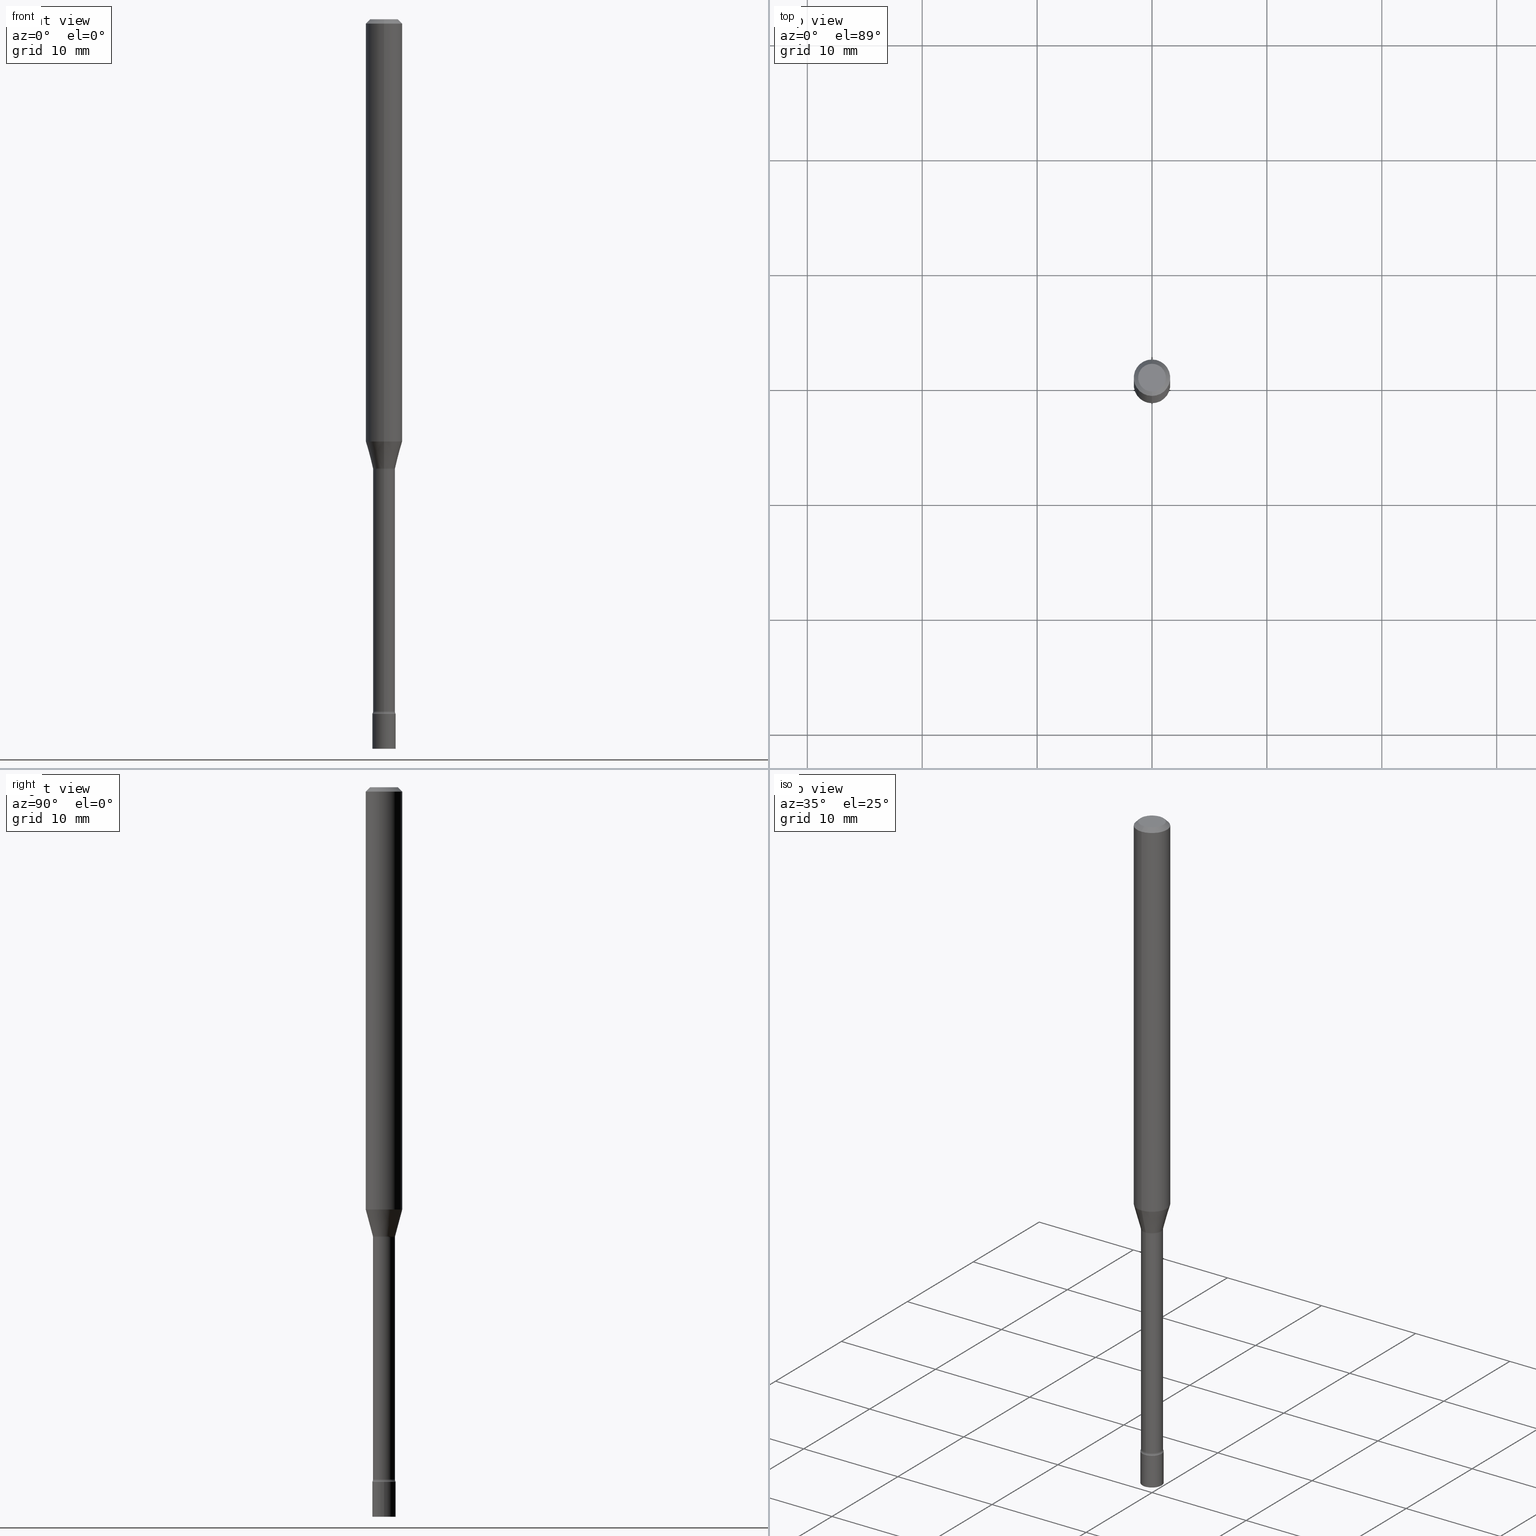
[diagram: canonical four-view strip — front | top / right | iso, engineering-drawing reading convention]
A machine part, canonical four-view strip (front | top / right | iso — engineering-drawing reading convention). The complete STEP part file that produces these views, byte-faithful:
ISO-10303-21;
HEADER;
FILE_DESCRIPTION (( 'STEP AP203' ),
    '1' );
FILE_NAME ('09721.STEP',
    '2024-03-09T01:15:24',
    ( '' ),
    ( '' ),
    'SwSTEP 2.0',
    'SolidWorks 2023',
    '' );
FILE_SCHEMA (( 'CONFIG_CONTROL_DESIGN' ));
ENDSEC;

DATA;
#1 = DIRECTION ( 'NONE',  ( -2.445461116337205302E-29, 3.491492351143062048E-15, 1.000000000000000000 ) ) ;
#2 = DIRECTION ( 'NONE',  ( -6.982962677686265922E-15, -1.000000000000000000, 3.491492351143062442E-15 ) ) ;
#3 = ORIENTED_EDGE ( 'NONE', *, *, #406, .T. ) ;
#4 = DIRECTION ( 'NONE',  ( 0.000000000000000000, 0.000000000000000000, 1.000000000000000000 ) ) ;
#5 = FACE_OUTER_BOUND ( 'NONE', #417, .T. ) ;
#6 = EDGE_CURVE ( 'NONE', #326, #100, #402, .T. ) ;
#7 = APPROVAL_ROLE ( '' ) ;
#8 = AXIS2_PLACEMENT_3D ( 'NONE', #9, #323, #93 ) ;
#9 = CARTESIAN_POINT ( 'NONE',  ( 5.820215758720625190E-29, -8.309725586446686731E-15, -2.379999999999999893 ) ) ;
#10 = AXIS2_PLACEMENT_3D ( 'NONE', #294, #213, #102 ) ;
#11 = DIRECTION ( 'NONE',  ( -6.982962677686265922E-15, -1.000000000000000000, 0.000000000000000000 ) ) ;
#12 = CARTESIAN_POINT ( 'NONE',  ( -0.04000000000000000083, -8.234997372473236299E-15, -2.379999999999999893 ) ) ;
#13 = DIRECTION ( 'NONE',  ( -2.445461116337205302E-29, 3.491492351143062048E-15, 1.000000000000000000 ) ) ;
#14 = ORIENTED_EDGE ( 'NONE', *, *, #513, .T. ) ;
#15 = CARTESIAN_POINT ( 'NONE',  ( 3.770839385115076071E-29, -5.383793176085344105E-15, -1.541974787463811003 ) ) ;
#16 = DIRECTION ( 'NONE',  ( -2.445461116337205302E-29, 3.491492351143062048E-15, 1.000000000000000000 ) ) ;
#17 = DIRECTION ( 'NONE',  ( -2.445461116337205302E-29, 3.491492351143062048E-15, 1.000000000000000000 ) ) ;
#18 = AXIS2_PLACEMENT_3D ( 'NONE', #518, #277, #179 ) ;
#19 = DIRECTION ( 'NONE',  ( -2.445461116337205302E-29, 3.491492351143062048E-15, 1.000000000000000000 ) ) ;
#20 = ORIENTED_EDGE ( 'NONE', *, *, #180, .T. ) ;
#21 = CARTESIAN_POINT ( 'NONE',  ( 0.04000000000000000083, -9.008021854215314980E-15, -2.500000000000000000 ) ) ;
#22 = EDGE_CURVE ( 'NONE', #28, #315, #311, .T. ) ;
#23 = ORIENTED_EDGE ( 'NONE', *, *, #22, .F. ) ;
#24 = PERSON ( 'UNSPECIFIED', 'UNSPECIFIED', 'UNSPECIFIED', ('UNSPECIFIED'), ('UNSPECIFIED'), ('UNSPECIFIED') ) ;
#25 = ADVANCED_FACE ( 'NONE', ( #83 ), #391, .T. ) ;
#26 = CARTESIAN_POINT ( 'NONE',  ( 3.737454790098713265E-16, 0.05259999999999181997, -2.371861204020250025 ) ) ;
#27 = DIRECTION ( 'NONE',  ( -2.438088387897960049E-29, 3.491481338843145188E-15, 1.000000000000000000 ) ) ;
#28 = VERTEX_POINT ( 'NONE', #448 ) ;
#29 = DIRECTION ( 'NONE',  ( 2.445461116337205302E-29, -3.491492351143061653E-15, -1.000000000000000000 ) ) ;
#30 = ORIENTED_EDGE ( 'NONE', *, *, #421, .F. ) ;
#31 = AXIS2_PLACEMENT_3D ( 'NONE', #44, #263, #338 ) ;
#32 = CARTESIAN_POINT ( 'NONE',  ( 3.737454790098503724E-16, 0.05259999999999460940, -1.541974787463811225 ) ) ;
#33 = VERTEX_POINT ( 'NONE', #133 ) ;
#34 = EDGE_CURVE ( 'NONE', #110, #271, #348, .T. ) ;
#35 = FACE_OUTER_BOUND ( 'NONE', #67, .T. ) ;
#36 = EDGE_CURVE ( 'NONE', #182, #71, #306, .T. ) ;
#37 = PERSON_AND_ORGANIZATION ( #24, #188 ) ;
#38 = CLOSED_SHELL ( 'NONE', ( #296, #483, #472, #153 ) ) ;
#39 = AXIS2_PLACEMENT_3D ( 'NONE', #140, #331, #458 ) ;
#40 = CARTESIAN_POINT ( 'NONE',  ( 5.820215758720625190E-29, -8.309725586446686731E-15, -2.379999999999999893 ) ) ;
#41 = FACE_OUTER_BOUND ( 'NONE', #319, .T. ) ;
#42 = EDGE_CURVE ( 'NONE', #33, #450, #128, .T. ) ;
#43 = PERSON_AND_ORGANIZATION ( #24, #188 ) ;
#44 = CARTESIAN_POINT ( 'NONE',  ( 3.770851242666705328E-29, -5.383776195396521708E-15, -1.541974787463811003 ) ) ;
#45 = CARTESIAN_POINT ( 'NONE',  ( -4.364351673553912750E-16, -0.06250000000000005551, -0.01499999999999981209 ) ) ;
#46 = DIRECTION ( 'NONE',  ( 1.000000000000000000, -7.105427357601001070E-15, 4.926315643403860971E-29 ) ) ;
#47 = DATE_AND_TIME ( #393, #461 ) ;
#48 = AXIS2_PLACEMENT_3D ( 'NONE', #455, #19, #414 ) ;
#49 = ORIENTED_EDGE ( 'NONE', *, *, #463, .T. ) ;
#50 = DIRECTION ( 'NONE',  ( 7.105427357600997914E-15, 1.000000000000000000, 0.000000000000000000 ) ) ;
#51 = EDGE_CURVE ( 'NONE', #145, #182, #187, .T. ) ;
#52 = DATE_AND_TIME ( #206, #372 ) ;
#53 = CC_DESIGN_PERSON_AND_ORGANIZATION_ASSIGNMENT ( #37, #442, ( #516 ) ) ;
#54 = ORIENTED_EDGE ( 'NONE', *, *, #51, .T. ) ;
#55 =( NAMED_UNIT ( * ) PLANE_ANGLE_UNIT ( ) SI_UNIT ( $, .RADIAN. ) );
#56 = LINE ( 'NONE', #131, #517 ) ;
#57 = PERSON_AND_ORGANIZATION ( #24, #188 ) ;
#58 = DIRECTION ( 'NONE',  ( -2.445461116337205302E-29, 3.491492351143061653E-15, 1.000000000000000000 ) ) ;
#59 = APPROVAL_STATUS ( 'not_yet_approved' ) ;
#60 = TOROIDAL_SURFACE ( 'NONE', #104, 0.05260000000000000092, 0.01500000000000002373 ) ;
#61 = APPROVAL_PERSON_ORGANIZATION ( #200, #64, #7 ) ;
#62 = COORDINATED_UNIVERSAL_TIME_OFFSET ( 5, 0, .BEHIND. ) ;
#63 = CARTESIAN_POINT ( 'NONE',  ( 3.761345406450589548E-29, -5.370238205340760891E-15, -1.538092501787273081 ) ) ;
#64 = APPROVAL ( #59, 'UNSPECIFIED' ) ;
#65 = DIRECTION ( 'NONE',  ( -4.851104656540964275E-15, -0.7071067811865500152, -0.7071067811865450192 ) ) ;
#66 = FACE_OUTER_BOUND ( 'NONE', #438, .T. ) ;
#67 = EDGE_LOOP ( 'NONE', ( #79, #120, #376, #236 ) ) ;
#68 = AXIS2_PLACEMENT_3D ( 'NONE', #146, #494, #410 ) ;
#69 = AXIS2_PLACEMENT_3D ( 'NONE', #356, #445, #117 ) ;
#70 = EDGE_LOOP ( 'NONE', ( #298, #155 ) ) ;
#71 = VERTEX_POINT ( 'NONE', #464 ) ;
#72 = DIRECTION ( 'NONE',  ( -2.445468806185136597E-29, 3.491481338843145583E-15, 1.000000000000000000 ) ) ;
#73 = FACE_OUTER_BOUND ( 'NONE', #468, .T. ) ;
#74 = ORIENTED_EDGE ( 'NONE', *, *, #36, .T. ) ;
#75 =( CONVERSION_BASED_UNIT ( 'INCH', #114 ) LENGTH_UNIT ( ) NAMED_UNIT ( #347 ) );
#76 = AXIS2_PLACEMENT_3D ( 'NONE', #178, #111, #424 ) ;
#77 = DIRECTION ( 'NONE',  ( -6.982962677686265922E-15, -1.000000000000000000, 3.483106191921935554E-15 ) ) ;
#78 = DIRECTION ( 'NONE',  ( 6.982962677686265922E-15, 1.000000000000000000, -3.483106191921935554E-15 ) ) ;
#79 = ORIENTED_EDGE ( 'NONE', *, *, #176, .T. ) ;
#80 = AXIS2_PLACEMENT_3D ( 'NONE', #247, #405, #119 ) ;
#81 = CIRCLE ( 'NONE', #10, 0.04749999999999999362 ) ;
#82 = ADVANCED_FACE ( 'NONE', ( #73 ), #175, .F. ) ;
#83 = FACE_OUTER_BOUND ( 'NONE', #379, .T. ) ;
#84 = APPROVAL_STATUS ( 'not_yet_approved' ) ;
#85 = ORIENTED_EDGE ( 'NONE', *, *, #267, .T. ) ;
#86 = EDGE_CURVE ( 'NONE', #450, #339, #282, .T. ) ;
#87 = DATE_AND_TIME ( #123, #498 ) ;
#88 = VECTOR ( 'NONE', #258, 39.37007874015748143 ) ;
#89 = CIRCLE ( 'NONE', #343, 0.03759999999999999454 ) ;
#90 = CARTESIAN_POINT ( 'NONE',  ( 2.671640686457979762E-16, 0.03760000000000005005, -1.312801124029792938E-16 ) ) ;
#91 = PERSON_AND_ORGANIZATION_ROLE ( 'design_supplier' ) ;
#92 = CARTESIAN_POINT ( 'NONE',  ( 5.800294347780268046E-29, -8.281335251809675167E-15, -2.371861204020250025 ) ) ;
#93 = DIRECTION ( 'NONE',  ( 1.000000000000000000, -6.982962677686259611E-15, 0.000000000000000000 ) ) ;
#94 = ADVANCED_FACE ( 'NONE', ( #5 ), #491, .F. ) ;
#95 = AXIS2_PLACEMENT_3D ( 'NONE', #324, #184, #77 ) ;
#96 = CIRCLE ( 'NONE', #69, 0.06250000000000000000 ) ;
#97 = EDGE_CURVE ( 'NONE', #408, #271, #308, .T. ) ;
#98 = DIRECTION ( 'NONE',  ( -1.000000000000000000, 6.982962677686265922E-15, -4.883557194083112340E-29 ) ) ;
#99 = CYLINDRICAL_SURFACE ( 'NONE', #223, 0.04000000000000000083 ) ;
#100 = VERTEX_POINT ( 'NONE', #45 ) ;
#101 = DIRECTION ( 'NONE',  ( -6.982962677686266711E-15, -1.000000000000000000, 0.000000000000000000 ) ) ;
#102 = DIRECTION ( 'NONE',  ( -6.982962677686266711E-15, -1.000000000000000000, 3.491492351143062442E-15 ) ) ;
#103 = DIRECTION ( 'NONE',  ( -6.982962677686265922E-15, -1.000000000000000000, 4.370956789862821150E-15 ) ) ;
#104 = AXIS2_PLACEMENT_3D ( 'NONE', #397, #350, #2 ) ;
#105 = DIRECTION ( 'NONE',  ( -6.982962677686266711E-15, -1.000000000000000000, 0.000000000000000000 ) ) ;
#106 = ORIENTED_EDGE ( 'NONE', *, *, #427, .F. ) ;
#107 = DIRECTION ( 'NONE',  ( -2.445468806185136597E-29, 3.491481338843145583E-15, 1.000000000000000000 ) ) ;
#108 = PRODUCT_DEFINITION_SHAPE ( 'NONE', 'NONE',  #516 ) ;
#109 = CARTESIAN_POINT ( 'NONE',  ( -4.364351673553565651E-16, -0.06250000000000509315, -1.447071934891535072 ) ) ;
#110 = VERTEX_POINT ( 'NONE', #197 ) ;
#111 = DIRECTION ( 'NONE',  ( -2.445461116337205302E-29, 3.491492351143062048E-15, 1.000000000000000000 ) ) ;
#112 = ORIENTED_EDGE ( 'NONE', *, *, #176, .F. ) ;
#113 = PLANE ( 'NONE',  #129 ) ;
#114 = LENGTH_MEASURE_WITH_UNIT ( LENGTH_MEASURE( 0.02539999999999999897 ), #337 );
#115 = AXIS2_PLACEMENT_3D ( 'NONE', #283, #487, #446 ) ;
#116 = PLANE ( 'NONE',  #371 ) ;
#117 = DIRECTION ( 'NONE',  ( -6.982962677686265922E-15, -1.000000000000000000, 3.483106191921935554E-15 ) ) ;
#118 = CIRCLE ( 'NONE', #407, 0.03811111260566397985 ) ;
#119 = DIRECTION ( 'NONE',  ( -6.982962677686265922E-15, -1.000000000000000000, 6.829619984160658243E-15 ) ) ;
#120 = ORIENTED_EDGE ( 'NONE', *, *, #383, .T. ) ;
#121 = EDGE_CURVE ( 'NONE', #271, #110, #328, .T. ) ;
#122 = DATE_TIME_ROLE ( 'creation_date' ) ;
#123 = CALENDAR_DATE ( 2024, 8, 3 ) ;
#124 = CARTESIAN_POINT ( 'NONE',  ( 5.800312587032241644E-29, -8.281309132162736146E-15, -2.371861204020250025 ) ) ;
#125 = CARTESIAN_POINT ( 'NONE',  ( 3.840629472727447874E-16, 0.04749999999999999362, -1.947592745229183872E-16 ) ) ;
#126 = FACE_OUTER_BOUND ( 'NONE', #373, .T. ) ;
#127 = CLOSED_SHELL ( 'NONE', ( #317, #164, #82, #221, #25, #453, #507, #318, #211, #141, #370, #94, #280, #312 ) ) ;
#128 = CIRCLE ( 'NONE', #415, 0.03811111260566397985 ) ;
#129 = AXIS2_PLACEMENT_3D ( 'NONE', #269, #29, #173 ) ;
#130 = AXIS2_PLACEMENT_3D ( 'NONE', #148, #420, #367 ) ;
#131 = CARTESIAN_POINT ( 'NONE',  ( -2.625593966810039482E-16, -0.03760000000000005005, 1.312801124029792938E-16 ) ) ;
#132 = FACE_OUTER_BOUND ( 'NONE', #385, .T. ) ;
#133 = CARTESIAN_POINT ( 'NONE',  ( -2.661284769304125735E-16, -0.03811111260566935055, -1.538092501787273081 ) ) ;
#134 = EDGE_CURVE ( 'NONE', #375, #315, #304, .T. ) ;
#135 = COORDINATED_UNIVERSAL_TIME_OFFSET ( 5, 0, .BEHIND. ) ;
#136 = CC_DESIGN_DATE_AND_TIME_ASSIGNMENT ( #87, #490, ( #492 ) ) ;
#137 = ORIENTED_EDGE ( 'NONE', *, *, #226, .T. ) ;
#138 = VECTOR ( 'NONE', #235, 39.37007874015748143 ) ;
#139 = PRODUCT_DEFINITION_FORMATION_WITH_SPECIFIED_SOURCE ( 'ANY', '', #170, .NOT_KNOWN. ) ;
#140 = CARTESIAN_POINT ( 'NONE',  ( 5.820197456882549084E-29, -8.309751795720488217E-15, -2.379999999999999893 ) ) ;
#141 = ADVANCED_FACE ( 'NONE', ( #186 ), #113, .F. ) ;
#142 = PERSON_AND_ORGANIZATION ( #24, #188 ) ;
#143 = CC_DESIGN_PERSON_AND_ORGANIZATION_ASSIGNMENT ( #142, #276, ( #170 ) ) ;
#144 = CARTESIAN_POINT ( 'NONE',  ( 3.770839385115076071E-29, -5.383793176085344105E-15, -1.541974787463811003 ) ) ;
#145 = VERTEX_POINT ( 'NONE', #501 ) ;
#146 = CARTESIAN_POINT ( 'NONE',  ( 6.113672015462842613E-29, -8.728703347107864943E-15, -2.500000000000000000 ) ) ;
#147 = CC_DESIGN_PERSON_AND_ORGANIZATION_ASSIGNMENT ( #354, #91, ( #139 ) ) ;
#148 = CARTESIAN_POINT ( 'NONE',  ( 3.761345406450589548E-29, -5.370238205340760891E-15, -1.538092501787273081 ) ) ;
#149 = DIRECTION ( 'NONE',  ( 2.438088387897960049E-29, -3.491481338843145188E-15, -1.000000000000000000 ) ) ;
#150 = VECTOR ( 'NONE', #58, 39.37007874015748143 ) ;
#151 = APPROVAL_PERSON_ORGANIZATION ( #401, #325, #441 ) ;
#152 = CARTESIAN_POINT ( 'NONE',  ( 3.668191674505815275E-31, -5.237238526714604140E-17, -0.01500000000000003067 ) ) ;
#153 = ADVANCED_FACE ( 'NONE', ( #183 ), #116, .T. ) ;
#154 = DATE_AND_TIME ( #229, #207 ) ;
#155 = ORIENTED_EDGE ( 'NONE', *, *, #361, .F. ) ;
#156 = CIRCLE ( 'NONE', #449, 0.04749999999999999362 ) ;
#157 = DIRECTION ( 'NONE',  ( -2.445461116337205302E-29, 3.491492351143062048E-15, 1.000000000000000000 ) ) ;
#158 = APPROVAL_DATE_TIME ( #47, #64 ) ;
#159 = AXIS2_PLACEMENT_3D ( 'NONE', #419, #72, #502 ) ;
#160 = DIRECTION ( 'NONE',  ( -2.445461116337205302E-29, 3.491492351143062048E-15, 1.000000000000000000 ) ) ;
#161 = EDGE_CURVE ( 'NONE', #450, #33, #118, .T. ) ;
#162 = DIRECTION ( 'NONE',  ( -2.445461116337205302E-29, 3.491492351143061653E-15, 1.000000000000000000 ) ) ;
#163 = APPROVAL_DATE_TIME ( #52, #325 ) ;
#164 = ADVANCED_FACE ( 'NONE', ( #35 ), #377, .T. ) ;
#165 = VECTOR ( 'NONE', #489, 39.37007874015748143 ) ;
#166 = LINE ( 'NONE', #330, #314 ) ;
#167 = DIRECTION ( 'NONE',  ( -6.982962677686265922E-15, -1.000000000000000000, 0.000000000000000000 ) ) ;
#168 = ORIENTED_EDGE ( 'NONE', *, *, #362, .F. ) ;
#169 = LINE ( 'NONE', #293, #357 ) ;
#170 = PRODUCT ( '09721', '09721', '', ( #239 ) ) ;
#171 = DIRECTION ( 'NONE',  ( -1.000000000000000000, 6.982962677686265922E-15, -4.883557194083112340E-29 ) ) ;
#172 = EDGE_LOOP ( 'NONE', ( #437, #493, #352, #480 ) ) ;
#173 = DIRECTION ( 'NONE',  ( 6.982962677686265922E-15, 1.000000000000000000, -3.491492351143061653E-15 ) ) ;
#174 = CARTESIAN_POINT ( 'NONE',  ( 4.440892098500982135E-16, 0.06249999999999995143, -0.01500000000000024751 ) ) ;
#175 = TOROIDAL_SURFACE ( 'NONE', #76, 0.05260000000000009807, 0.01500000000000000291 ) ;
#176 = EDGE_CURVE ( 'NONE', #264, #145, #394, .T. ) ;
#177 = CIRCLE ( 'NONE', #233, 0.06250000000000000000 ) ;
#178 = CARTESIAN_POINT ( 'NONE',  ( 5.800312587032241644E-29, -8.281309132162736146E-15, -2.371861204020250025 ) ) ;
#179 = DIRECTION ( 'NONE',  ( -6.982962677686265922E-15, -1.000000000000000000, 3.491492351143062048E-15 ) ) ;
#180 = EDGE_CURVE ( 'NONE', #100, #315, #470, .T. ) ;
#181 = APPLICATION_PROTOCOL_DEFINITION ( 'international standard', 'config_control_design', 1994, #439 ) ;
#182 = VERTEX_POINT ( 'NONE', #305 ) ;
#183 = FACE_OUTER_BOUND ( 'NONE', #70, .T. ) ;
#184 = DIRECTION ( 'NONE',  ( -2.445461116337205302E-29, 3.491492351143062048E-15, 1.000000000000000000 ) ) ;
#185 = CARTESIAN_POINT ( 'NONE',  ( 5.820215758720625190E-29, -8.309725586446686731E-15, -2.379999999999999893 ) ) ;
#186 = FACE_OUTER_BOUND ( 'NONE', #505, .T. ) ;
#187 = CIRCLE ( 'NONE', #287, 0.01500000000000000291 ) ;
#188 = ORGANIZATION ( 'UNSPECIFIED', 'UNSPECIFIED', '' ) ;
#189 = DIRECTION ( 'NONE',  ( 6.982962677686265922E-15, 1.000000000000000000, -3.483106191921935554E-15 ) ) ;
#190 = DIRECTION ( 'NONE',  ( 1.000000000000000000, -6.982962677686265922E-15, 4.876176775795935793E-29 ) ) ;
#191 = PLANE ( 'NONE',  #388 ) ;
#192 = CYLINDRICAL_SURFACE ( 'NONE', #232, 0.06250000000000000000 ) ;
#193 = DIRECTION ( 'NONE',  ( -1.000000000000000000, 6.982962677686265922E-15, -4.876176775795935793E-29 ) ) ;
#194 = ORIENTED_EDGE ( 'NONE', *, *, #6, .F. ) ;
#195 = DIRECTION ( 'NONE',  ( -2.445461116337205302E-29, 3.491492351143061653E-15, 1.000000000000000000 ) ) ;
#196 = AXIS2_PLACEMENT_3D ( 'NONE', #152, #473, #78 ) ;
#197 = CARTESIAN_POINT ( 'NONE',  ( 0.04000000000000000083, -8.589044093554136769E-15, -2.379999999999999893 ) ) ;
#198 = ORIENTED_EDGE ( 'NONE', *, *, #443, .T. ) ;
#199 = CARTESIAN_POINT ( 'NONE',  ( 0.000000000000000000, 0.000000000000000000, 0.000000000000000000 ) ) ;
#200 = PERSON_AND_ORGANIZATION ( #24, #188 ) ;
#201 = DIRECTION ( 'NONE',  ( -6.982962677686265922E-15, -1.000000000000000000, 3.491492351143061653E-15 ) ) ;
#202 = COORDINATED_UNIVERSAL_TIME_OFFSET ( 5, 0, .BEHIND. ) ;
#203 = APPROVAL ( #519, 'UNSPECIFIED' ) ;
#204 = PLANE ( 'NONE',  #242 ) ;
#205 = CONICAL_SURFACE ( 'NONE', #342, 0.06250000000000000000, 0.7853981633974483900 ) ;
#206 = CALENDAR_DATE ( 2024, 8, 3 ) ;
#207 = LOCAL_TIME ( 20, 15, 24.00000000000000000, #310 ) ;
#208 = DIRECTION ( 'NONE',  ( -2.445461116337205302E-29, 3.491492351143062048E-15, 1.000000000000000000 ) ) ;
#209 = CARTESIAN_POINT ( 'NONE',  ( -2.625593966809658857E-16, -0.03760000000000537912, -1.541974787463811003 ) ) ;
#210 = ORIENTED_EDGE ( 'NONE', *, *, #6, .T. ) ;
#211 = ADVANCED_FACE ( 'NONE', ( #386 ), #425, .T. ) ;
#212 = DIRECTION ( 'NONE',  ( -1.807323732225330534E-15, -0.2588190451025182415, 0.9659258262890689783 ) ) ;
#213 = DIRECTION ( 'NONE',  ( -2.445461116337205302E-29, 3.491492351143062048E-15, 1.000000000000000000 ) ) ;
#214 = DIRECTION ( 'NONE',  ( -2.445468806185136597E-29, 3.491481338843145583E-15, 1.000000000000000000 ) ) ;
#215 = AXIS2_PLACEMENT_3D ( 'NONE', #92, #160, #11 ) ;
#216 = CC_DESIGN_APPROVAL ( #203, ( #516 ) ) ;
#217 = DESIGN_CONTEXT ( 'detailed design', #345, 'design' ) ;
#218 = CARTESIAN_POINT ( 'NONE',  ( -3.773273898774340269E-16, -0.04749999999999999362, 1.369324988356724708E-16 ) ) ;
#219 = ORIENTED_EDGE ( 'NONE', *, *, #86, .F. ) ;
#220 = ADVANCED_BREP_SHAPE_REPRESENTATION ( '09721', ( #227, #398, #416 ), #256 ) ;
#221 = ADVANCED_FACE ( 'NONE', ( #230 ), #205, .T. ) ;
#222 = VECTOR ( 'NONE', #358, 39.37007874015748143 ) ;
#223 = AXIS2_PLACEMENT_3D ( 'NONE', #412, #214, #506 ) ;
#224 = ORIENTED_EDGE ( 'NONE', *, *, #421, .T. ) ;
#225 = ORIENTED_EDGE ( 'NONE', *, *, #161, .T. ) ;
#226 = EDGE_CURVE ( 'NONE', #422, #408, #510, .T. ) ;
#227 = MANIFOLD_SOLID_BREP ( 'Body-Move/Copy2[1]', #38 ) ;
#228 = EDGE_CURVE ( 'NONE', #422, #110, #302, .T. ) ;
#229 = CALENDAR_DATE ( 2024, 8, 3 ) ;
#230 = FACE_OUTER_BOUND ( 'NONE', #301, .T. ) ;
#231 = DIRECTION ( 'NONE',  ( -6.982962677686265922E-15, -1.000000000000000000, 3.491492351143062048E-15 ) ) ;
#232 = AXIS2_PLACEMENT_3D ( 'NONE', #515, #157, #316 ) ;
#233 = AXIS2_PLACEMENT_3D ( 'NONE', #363, #13, #103 ) ;
#234 = DIRECTION ( 'NONE',  ( -2.445461116337205302E-29, 3.491492351143061653E-15, 1.000000000000000000 ) ) ;
#235 = DIRECTION ( 'NONE',  ( -2.445468806185136877E-29, 3.491481338843145188E-15, 1.000000000000000000 ) ) ;
#236 = ORIENTED_EDGE ( 'NONE', *, *, #392, .F. ) ;
#237 = ORIENTED_EDGE ( 'NONE', *, *, #409, .T. ) ;
#238 =( NAMED_UNIT ( * ) SI_UNIT ( $, .STERADIAN. ) SOLID_ANGLE_UNIT ( ) );
#239 = MECHANICAL_CONTEXT ( 'NONE', #439, 'mechanical' ) ;
#240 = PERSON_AND_ORGANIZATION ( #24, #188 ) ;
#241 = ORIENTED_EDGE ( 'NONE', *, *, #228, .F. ) ;
#242 = AXIS2_PLACEMENT_3D ( 'NONE', #481, #195, #201 ) ;
#243 = CARTESIAN_POINT ( 'NONE',  ( 2.707957421369348639E-16, 0.03811111260565861608, -1.538092501787273081 ) ) ;
#244 = EDGE_CURVE ( 'NONE', #71, #182, #496, .T. ) ;
#245 = DIRECTION ( 'NONE',  ( -6.982962677686265922E-15, -1.000000000000000000, 3.491492351143061653E-15 ) ) ;
#246 = CARTESIAN_POINT ( 'NONE',  ( 3.761345406450589548E-29, -5.370238205340760891E-15, -1.538092501787273081 ) ) ;
#247 = CARTESIAN_POINT ( 'NONE',  ( 5.820197456882549084E-29, -8.309751795720488217E-15, -2.379999999999999893 ) ) ;
#248 = ORIENTED_EDGE ( 'NONE', *, *, #180, .F. ) ;
#249 = AXIS2_PLACEMENT_3D ( 'NONE', #32, #46, #50 ) ;
#250 = CC_DESIGN_DATE_AND_TIME_ASSIGNMENT ( #384, #122, ( #516 ) ) ;
#251 = DIRECTION ( 'NONE',  ( -6.982962677686265922E-15, -1.000000000000000000, 0.000000000000000000 ) ) ;
#252 = ORIENTED_EDGE ( 'NONE', *, *, #22, .T. ) ;
#253 = DIRECTION ( 'NONE',  ( -2.445461116337205302E-29, 3.491492351143062048E-15, 1.000000000000000000 ) ) ;
#254 = CIRCLE ( 'NONE', #115, 0.06250000000000000000 ) ;
#255 = ORIENTED_EDGE ( 'NONE', *, *, #161, .F. ) ;
#256 =( GEOMETRIC_REPRESENTATION_CONTEXT ( 3 ) GLOBAL_UNCERTAINTY_ASSIGNED_CONTEXT ( ( #418 ) ) GLOBAL_UNIT_ASSIGNED_CONTEXT ( ( #75, #55, #238 ) ) REPRESENTATION_CONTEXT ( 'NONE', 'WORKASPACE' ) );
#257 = ORIENTED_EDGE ( 'NONE', *, *, #97, .T. ) ;
#258 = DIRECTION ( 'NONE',  ( 4.937700262164548042E-15, 0.7071067811865451302, -0.7071067811865499042 ) ) ;
#259 = EDGE_CURVE ( 'NONE', #355, #100, #169, .T. ) ;
#260 = CARTESIAN_POINT ( 'NONE',  ( 2.671640686458559082E-16, 0.03759999999999461689, -1.541974787463811003 ) ) ;
#261 = ORIENTED_EDGE ( 'NONE', *, *, #259, .F. ) ;
#262 = ORIENTED_EDGE ( 'NONE', *, *, #349, .F. ) ;
#263 = DIRECTION ( 'NONE',  ( -2.445461116337205302E-29, 3.491492351143062048E-15, 1.000000000000000000 ) ) ;
#264 = VERTEX_POINT ( 'NONE', #369 ) ;
#265 = APPROVAL_DATE_TIME ( #154, #203 ) ;
#266 = ORIENTED_EDGE ( 'NONE', *, *, #267, .F. ) ;
#267 = EDGE_CURVE ( 'NONE', #33, #326, #166, .T. ) ;
#268 = CIRCLE ( 'NONE', #48, 0.03760000000000009862 ) ;
#269 = CARTESIAN_POINT ( 'NONE',  ( 3.316907271900976096E-16, 0.04749999999999999362, -1.803025806011069266E-16 ) ) ;
#270 = AXIS2_PLACEMENT_3D ( 'NONE', #124, #434, #231 ) ;
#271 = VERTEX_POINT ( 'NONE', #12 ) ;
#272 = CIRCLE ( 'NONE', #329, 0.03759999999999999454 ) ;
#273 = EDGE_CURVE ( 'NONE', #450, #28, #322, .T. ) ;
#274 = EDGE_CURVE ( 'NONE', #28, #326, #254, .T. ) ;
#275 = ORIENTED_EDGE ( 'NONE', *, *, #134, .T. ) ;
#276 = PERSON_AND_ORGANIZATION_ROLE ( 'design_owner' ) ;
#277 = DIRECTION ( 'NONE',  ( -2.445461116337205302E-29, 3.491492351143062048E-15, 1.000000000000000000 ) ) ;
#278 = ORIENTED_EDGE ( 'NONE', *, *, #273, .F. ) ;
#279 = SHAPE_DEFINITION_REPRESENTATION ( #108, #220 ) ;
#280 = ADVANCED_FACE ( 'NONE', ( #132 ), #444, .T. ) ;
#281 = EDGE_LOOP ( 'NONE', ( #495, #336 ) ) ;
#282 = CIRCLE ( 'NONE', #249, 0.01500000000000002720 ) ;
#283 = CARTESIAN_POINT ( 'NONE',  ( 3.538758149320093430E-29, -5.052440592227586614E-15, -1.447071934891535294 ) ) ;
#284 = COORDINATED_UNIVERSAL_TIME_OFFSET ( 5, 0, .BEHIND. ) ;
#285 = CARTESIAN_POINT ( 'NONE',  ( 0.000000000000000000, 0.000000000000000000, 0.000000000000000000 ) ) ;
#286 = DIRECTION ( 'NONE',  ( -6.982962677686263555E-15, -1.000000000000000000, 0.000000000000000000 ) ) ;
#287 = AXIS2_PLACEMENT_3D ( 'NONE', #26, #300, #511 ) ;
#288 = APPROVAL_PERSON_ORGANIZATION ( #43, #203, #469 ) ;
#289 = ORIENTED_EDGE ( 'NONE', *, *, #259, .T. ) ;
#290 = DIRECTION ( 'NONE',  ( -6.982962677686265922E-15, -1.000000000000000000, 3.491492351143061653E-15 ) ) ;
#291 = CARTESIAN_POINT ( 'NONE',  ( 4.364351673553919652E-16, 0.06249999999999995143, -0.01500000000000024751 ) ) ;
#292 = PRODUCT_RELATED_PRODUCT_CATEGORY ( 'detail', '', ( #170 ) ) ;
#293 = CARTESIAN_POINT ( 'NONE',  ( -4.287811248607203282E-16, -0.06250000000000005551, -0.01499999999999981209 ) ) ;
#294 = CARTESIAN_POINT ( 'NONE',  ( 7.070656571315682104E-46, -1.009508725016424061E-31, -2.891338784362297672E-17 ) ) ;
#295 = ORIENTED_EDGE ( 'NONE', *, *, #42, .T. ) ;
#296 = ADVANCED_FACE ( 'NONE', ( #126 ), #360, .T. ) ;
#297 = AXIS2_PLACEMENT_3D ( 'NONE', #440, #400, #403 ) ;
#298 = ORIENTED_EDGE ( 'NONE', *, *, #226, .F. ) ;
#299 = AXIS2_PLACEMENT_3D ( 'NONE', #456, #171, #286 ) ;
#300 = DIRECTION ( 'NONE',  ( 1.000000000000000000, -7.105427357601001070E-15, 4.926315643403860971E-29 ) ) ;
#301 = EDGE_LOOP ( 'NONE', ( #30, #289, #20, #475 ) ) ;
#302 = LINE ( 'NONE', #423, #459 ) ;
#303 = CARTESIAN_POINT ( 'NONE',  ( 3.761345406450589548E-29, -5.370238205340760891E-15, -1.538092501787273081 ) ) ;
#304 = LINE ( 'NONE', #291, #88 ) ;
#305 = CARTESIAN_POINT ( 'NONE',  ( 2.842170943040982095E-16, 0.03999999999999170192, -2.380000000000000338 ) ) ;
#306 = CIRCLE ( 'NONE', #80, 0.04000000000000000083 ) ;
#307 = ORIENTED_EDGE ( 'NONE', *, *, #383, .F. ) ;
#308 = LINE ( 'NONE', #346, #138 ) ;
#309 = FACE_OUTER_BOUND ( 'NONE', #281, .T. ) ;
#310 = COORDINATED_UNIVERSAL_TIME_OFFSET ( 5, 0, .BEHIND. ) ;
#311 = LINE ( 'NONE', #474, #320 ) ;
#312 = ADVANCED_FACE ( 'NONE', ( #41 ), #60, .F. ) ;
#313 = FACE_OUTER_BOUND ( 'NONE', #395, .T. ) ;
#314 = VECTOR ( 'NONE', #212, 39.37007874015748143 ) ;
#315 = VERTEX_POINT ( 'NONE', #174 ) ;
#316 = DIRECTION ( 'NONE',  ( -6.982962677686265922E-15, -1.000000000000000000, 3.491492351143062048E-15 ) ) ;
#317 = ADVANCED_FACE ( 'NONE', ( #313 ), #387, .F. ) ;
#318 = ADVANCED_FACE ( 'NONE', ( #390 ), #192, .T. ) ;
#319 = EDGE_LOOP ( 'NONE', ( #219, #478, #237, #14 ) ) ;
#320 = VECTOR ( 'NONE', #234, 39.37007874015748143 ) ;
#321 = LINE ( 'NONE', #90, #222 ) ;
#322 = LINE ( 'NONE', #243, #165 ) ;
#323 = DIRECTION ( 'NONE',  ( -2.445468806185136597E-29, 3.491481338843145583E-15, 1.000000000000000000 ) ) ;
#324 = CARTESIAN_POINT ( 'NONE',  ( 3.668191674505815275E-31, -5.237238526714604140E-17, -0.01500000000000003067 ) ) ;
#325 = APPROVAL ( #84, 'UNSPECIFIED' ) ;
#326 = VERTEX_POINT ( 'NONE', #109 ) ;
#327 = FACE_OUTER_BOUND ( 'NONE', #172, .T. ) ;
#328 = CIRCLE ( 'NONE', #482, 0.04000000000000000083 ) ;
#329 = AXIS2_PLACEMENT_3D ( 'NONE', #15, #454, #167 ) ;
#330 = CARTESIAN_POINT ( 'NONE',  ( -2.661284769304125735E-16, -0.03811111260566935055, -1.538092501787273081 ) ) ;
#331 = DIRECTION ( 'NONE',  ( -2.445461116337205302E-29, 3.491492351143062048E-15, 1.000000000000000000 ) ) ;
#332 = ORIENTED_EDGE ( 'NONE', *, *, #349, .T. ) ;
#333 = CIRCLE ( 'NONE', #159, 0.04000000000000000083 ) ;
#334 = EDGE_LOOP ( 'NONE', ( #435, #462 ) ) ;
#335 = CC_DESIGN_APPROVAL ( #64, ( #492 ) ) ;
#336 = ORIENTED_EDGE ( 'NONE', *, *, #121, .T. ) ;
#337 =( LENGTH_UNIT ( ) NAMED_UNIT ( * ) SI_UNIT ( $, .METRE. ) );
#338 = DIRECTION ( 'NONE',  ( -6.982962677686265922E-15, -1.000000000000000000, 3.491492351143062442E-15 ) ) ;
#339 = VERTEX_POINT ( 'NONE', #260 ) ;
#340 = ORIENTED_EDGE ( 'NONE', *, *, #392, .T. ) ;
#341 = CARTESIAN_POINT ( 'NONE',  ( -0.04000000000000000083, -8.234997372473236299E-15, -2.500000000000000000 ) ) ;
#342 = AXIS2_PLACEMENT_3D ( 'NONE', #512, #389, #189 ) ;
#343 = AXIS2_PLACEMENT_3D ( 'NONE', #144, #16, #251 ) ;
#344 = ORIENTED_EDGE ( 'NONE', *, *, #463, .F. ) ;
#345 = APPLICATION_CONTEXT ( 'configuration controlled 3d designs of mechanical parts and assemblies' ) ;
#346 = CARTESIAN_POINT ( 'NONE',  ( -0.04000000000000000083, 2.842170943040400803E-16, -1.967574036101962509E-30 ) ) ;
#347 = DIMENSIONAL_EXPONENTS ( 1.000000000000000000, 0.000000000000000000, 0.000000000000000000, 0.000000000000000000, 0.000000000000000000, 0.000000000000000000, 0.000000000000000000 ) ;
#348 = CIRCLE ( 'NONE', #8, 0.04000000000000000083 ) ;
#349 = EDGE_CURVE ( 'NONE', #145, #264, #268, .T. ) ;
#350 = DIRECTION ( 'NONE',  ( -2.445461116337205302E-29, 3.491492351143062048E-15, 1.000000000000000000 ) ) ;
#351 = PERSON_AND_ORGANIZATION_ROLE ( 'creator' ) ;
#352 = ORIENTED_EDGE ( 'NONE', *, *, #228, .T. ) ;
#353 = DIRECTION ( 'NONE',  ( -6.982962677686266711E-15, -1.000000000000000000, 3.491492351143062442E-15 ) ) ;
#354 = PERSON_AND_ORGANIZATION ( #24, #188 ) ;
#355 = VERTEX_POINT ( 'NONE', #218 ) ;
#356 = CARTESIAN_POINT ( 'NONE',  ( 3.668191674505815275E-31, -5.237238526714604140E-17, -0.01500000000000003067 ) ) ;
#357 = VECTOR ( 'NONE', #65, 39.37007874015748143 ) ;
#358 = DIRECTION ( 'NONE',  ( -2.445461116337205302E-29, 3.491492351143061653E-15, 1.000000000000000000 ) ) ;
#359 = CIRCLE ( 'NONE', #380, 0.01500000000000000291 ) ;
#360 = CYLINDRICAL_SURFACE ( 'NONE', #297, 0.04000000000000000083 ) ;
#361 = EDGE_CURVE ( 'NONE', #408, #422, #333, .T. ) ;
#362 = EDGE_CURVE ( 'NONE', #375, #355, #156, .T. ) ;
#363 = CARTESIAN_POINT ( 'NONE',  ( 3.538758149320093430E-29, -5.052440592227586614E-15, -1.447071934891535294 ) ) ;
#364 = ORIENTED_EDGE ( 'NONE', *, *, #273, .T. ) ;
#365 = FACE_OUTER_BOUND ( 'NONE', #514, .T. ) ;
#366 = EDGE_LOOP ( 'NONE', ( #23, #382, #210, #457 ) ) ;
#367 = DIRECTION ( 'NONE',  ( -6.982962677686266711E-15, -1.000000000000000000, 0.000000000000000000 ) ) ;
#368 = ORIENTED_EDGE ( 'NONE', *, *, #51, .F. ) ;
#369 = CARTESIAN_POINT ( 'NONE',  ( -2.625593966809462627E-16, -0.03760000000000837672, -2.371861204020250025 ) ) ;
#370 = ADVANCED_FACE ( 'NONE', ( #399 ), #204, .F. ) ;
#371 = AXIS2_PLACEMENT_3D ( 'NONE', #466, #149, #193 ) ;
#372 = LOCAL_TIME ( 20, 15, 24.00000000000000000, #62 ) ;
#373 = EDGE_LOOP ( 'NONE', ( #137, #257, #465, #241 ) ) ;
#374 = CC_DESIGN_PERSON_AND_ORGANIZATION_ASSIGNMENT ( #57, #351, ( #139 ) ) ;
#375 = VERTEX_POINT ( 'NONE', #125 ) ;
#376 = ORIENTED_EDGE ( 'NONE', *, *, #513, .F. ) ;
#377 = CYLINDRICAL_SURFACE ( 'NONE', #476, 0.03760000000000005005 ) ;
#378 = ORIENTED_EDGE ( 'NONE', *, *, #244, .T. ) ;
#379 = EDGE_LOOP ( 'NONE', ( #49, #252, #248, #194 ) ) ;
#380 = AXIS2_PLACEMENT_3D ( 'NONE', #447, #98, #452 ) ;
#381 = DIRECTION ( 'NONE',  ( -2.445468806185136877E-29, 3.491481338843145188E-15, 1.000000000000000000 ) ) ;
#382 = ORIENTED_EDGE ( 'NONE', *, *, #274, .T. ) ;
#383 = EDGE_CURVE ( 'NONE', #145, #339, #321, .T. ) ;
#384 = DATE_AND_TIME ( #500, #471 ) ;
#385 = EDGE_LOOP ( 'NONE', ( #307, #332, #340, #508 ) ) ;
#386 = FACE_OUTER_BOUND ( 'NONE', #477, .T. ) ;
#387 = TOROIDAL_SURFACE ( 'NONE', #31, 0.05260000000000000092, 0.01500000000000002373 ) ;
#388 = AXIS2_PLACEMENT_3D ( 'NONE', #40, #27, #190 ) ;
#389 = DIRECTION ( 'NONE',  ( 2.445461116337205302E-29, -3.491492351143062048E-15, -1.000000000000000000 ) ) ;
#390 = FACE_OUTER_BOUND ( 'NONE', #366, .T. ) ;
#391 = CYLINDRICAL_SURFACE ( 'NONE', #18, 0.06250000000000000000 ) ;
#392 = EDGE_CURVE ( 'NONE', #264, #428, #56, .T. ) ;
#393 = CALENDAR_DATE ( 2024, 8, 3 ) ;
#394 = CIRCLE ( 'NONE', #215, 0.03760000000000009862 ) ;
#395 = EDGE_LOOP ( 'NONE', ( #255, #467, #198, #413 ) ) ;
#396 = AXIS2_PLACEMENT_3D ( 'NONE', #63, #17, #101 ) ;
#397 = CARTESIAN_POINT ( 'NONE',  ( 3.770851242666705328E-29, -5.383776195396521708E-15, -1.541974787463811003 ) ) ;
#398 = MANIFOLD_SOLID_BREP ( 'Body-Move/Copy2[2]', #127 ) ;
#399 = FACE_OUTER_BOUND ( 'NONE', #334, .T. ) ;
#400 = DIRECTION ( 'NONE',  ( -2.445468806185136597E-29, 3.491481338843145583E-15, 1.000000000000000000 ) ) ;
#401 = PERSON_AND_ORGANIZATION ( #24, #188 ) ;
#402 = LINE ( 'NONE', #433, #150 ) ;
#403 = DIRECTION ( 'NONE',  ( 1.000000000000000000, -6.982962677686265922E-15, 4.876176775795935793E-29 ) ) ;
#404 = PERSON_AND_ORGANIZATION_ROLE ( 'classification_officer' ) ;
#405 = DIRECTION ( 'NONE',  ( -2.445461116337205302E-29, 3.491492351143062048E-15, 1.000000000000000000 ) ) ;
#406 = EDGE_CURVE ( 'NONE', #315, #100, #96, .T. ) ;
#407 = AXIS2_PLACEMENT_3D ( 'NONE', #246, #488, #105 ) ;
#408 = VERTEX_POINT ( 'NONE', #341 ) ;
#409 = EDGE_CURVE ( 'NONE', #33, #428, #451, .T. ) ;
#410 = DIRECTION ( 'NONE',  ( 1.000000000000000000, -6.982962677686259611E-15, 0.000000000000000000 ) ) ;
#411 = CARTESIAN_POINT ( 'NONE',  ( 3.574424759935165140E-16, 0.03811111260565861608, -1.538092501787273081 ) ) ;
#412 = CARTESIAN_POINT ( 'NONE',  ( 0.000000000000000000, 0.000000000000000000, 0.000000000000000000 ) ) ;
#413 = ORIENTED_EDGE ( 'NONE', *, *, #409, .F. ) ;
#414 = DIRECTION ( 'NONE',  ( -6.982962677686265922E-15, -1.000000000000000000, 0.000000000000000000 ) ) ;
#415 = AXIS2_PLACEMENT_3D ( 'NONE', #303, #497, #460 ) ;
#416 = AXIS2_PLACEMENT_3D ( 'NONE', #199, #4, #509 ) ;
#417 = EDGE_LOOP ( 'NONE', ( #368, #112, #426, #378 ) ) ;
#418 = UNCERTAINTY_MEASURE_WITH_UNIT (LENGTH_MEASURE( 1.000000000000000082E-05 ), #75, 'distance_accuracy_value', 'NONE');
#419 = CARTESIAN_POINT ( 'NONE',  ( 6.113672015462842613E-29, -8.728703347107864943E-15, -2.500000000000000000 ) ) ;
#420 = DIRECTION ( 'NONE',  ( -2.445461116337205302E-29, 3.491492351143062048E-15, 1.000000000000000000 ) ) ;
#421 = EDGE_CURVE ( 'NONE', #355, #375, #81, .T. ) ;
#422 = VERTEX_POINT ( 'NONE', #21 ) ;
#423 = CARTESIAN_POINT ( 'NONE',  ( 0.04000000000000000083, -2.793185071074506290E-16, 1.950470710318374387E-30 ) ) ;
#424 = DIRECTION ( 'NONE',  ( -6.982962677686265922E-15, -1.000000000000000000, 3.491492351143062048E-15 ) ) ;
#425 = CONICAL_SURFACE ( 'NONE', #196, 0.06250000000000000000, 0.7853981633974483900 ) ;
#426 = ORIENTED_EDGE ( 'NONE', *, *, #427, .T. ) ;
#427 = EDGE_CURVE ( 'NONE', #264, #71, #359, .T. ) ;
#428 = VERTEX_POINT ( 'NONE', #209 ) ;
#429 = CARTESIAN_POINT ( 'NONE',  ( 0.000000000000000000, 0.000000000000000000, 0.000000000000000000 ) ) ;
#430 = AXIS2_PLACEMENT_3D ( 'NONE', #285, #208, #245 ) ;
#431 = CONICAL_SURFACE ( 'NONE', #396, 0.03811111260566397985, 0.2617993877991502960 ) ;
#432 = ORIENTED_EDGE ( 'NONE', *, *, #274, .F. ) ;
#433 = CARTESIAN_POINT ( 'NONE',  ( -4.364351673553916201E-16, -0.06250000000000000000, 2.182182719464413780E-16 ) ) ;
#434 = DIRECTION ( 'NONE',  ( -2.445461116337205302E-29, 3.491492351143062048E-15, 1.000000000000000000 ) ) ;
#435 = ORIENTED_EDGE ( 'NONE', *, *, #244, .F. ) ;
#436 = APPLICATION_PROTOCOL_DEFINITION ( 'international standard', 'config_control_design', 1994, #345 ) ;
#437 = ORIENTED_EDGE ( 'NONE', *, *, #97, .F. ) ;
#438 = EDGE_LOOP ( 'NONE', ( #278, #225, #85, #432 ) ) ;
#439 = APPLICATION_CONTEXT ( 'configuration controlled 3d designs of mechanical parts and assemblies' ) ;
#440 = CARTESIAN_POINT ( 'NONE',  ( 0.000000000000000000, 0.000000000000000000, 0.000000000000000000 ) ) ;
#441 = APPROVAL_ROLE ( '' ) ;
#442 = PERSON_AND_ORGANIZATION_ROLE ( 'creator' ) ;
#443 = EDGE_CURVE ( 'NONE', #339, #428, #89, .T. ) ;
#444 = CYLINDRICAL_SURFACE ( 'NONE', #430, 0.03760000000000005005 ) ;
#445 = DIRECTION ( 'NONE',  ( -2.445461116337205302E-29, 3.491492351143062048E-15, 1.000000000000000000 ) ) ;
#446 = DIRECTION ( 'NONE',  ( -6.982962677686265922E-15, -1.000000000000000000, 4.370956789862821150E-15 ) ) ;
#447 = CARTESIAN_POINT ( 'NONE',  ( -3.673038368462402733E-16, -0.05260000000000838311, -2.371861204020249581 ) ) ;
#448 = CARTESIAN_POINT ( 'NONE',  ( 4.440892098500976219E-16, 0.06249999999999491379, -1.447071934891535516 ) ) ;
#449 = AXIS2_PLACEMENT_3D ( 'NONE', #486, #1, #353 ) ;
#450 = VERTEX_POINT ( 'NONE', #411 ) ;
#451 = CIRCLE ( 'NONE', #299, 0.01500000000000002720 ) ;
#452 = DIRECTION ( 'NONE',  ( -6.982962677686266711E-15, -1.000000000000000000, 0.000000000000000000 ) ) ;
#453 = ADVANCED_FACE ( 'NONE', ( #365 ), #484, .T. ) ;
#454 = DIRECTION ( 'NONE',  ( -2.445461116337205302E-29, 3.491492351143062048E-15, 1.000000000000000000 ) ) ;
#455 = CARTESIAN_POINT ( 'NONE',  ( 5.800294347780268046E-29, -8.281335251809675167E-15, -2.371861204020250025 ) ) ;
#456 = CARTESIAN_POINT ( 'NONE',  ( -3.673038368462598469E-16, -0.05260000000000538550, -1.541974787463810781 ) ) ;
#457 = ORIENTED_EDGE ( 'NONE', *, *, #406, .F. ) ;
#458 = DIRECTION ( 'NONE',  ( -6.982962677686265922E-15, -1.000000000000000000, 6.829619984160658243E-15 ) ) ;
#459 = VECTOR ( 'NONE', #381, 39.37007874015748143 ) ;
#460 = DIRECTION ( 'NONE',  ( -6.982962677686266711E-15, -1.000000000000000000, 0.000000000000000000 ) ) ;
#461 = LOCAL_TIME ( 20, 15, 24.00000000000000000, #135 ) ;
#462 = ORIENTED_EDGE ( 'NONE', *, *, #36, .F. ) ;
#463 = EDGE_CURVE ( 'NONE', #326, #28, #177, .T. ) ;
#464 = CARTESIAN_POINT ( 'NONE',  ( -2.793185071073924012E-16, -0.04000000000000831363, -2.379999999999999893 ) ) ;
#465 = ORIENTED_EDGE ( 'NONE', *, *, #34, .F. ) ;
#466 = CARTESIAN_POINT ( 'NONE',  ( 2.793185071075117657E-16, 0.03999999999999127864, -2.500000000000000000 ) ) ;
#467 = ORIENTED_EDGE ( 'NONE', *, *, #86, .T. ) ;
#468 = EDGE_LOOP ( 'NONE', ( #262, #54, #74, #106 ) ) ;
#469 = APPROVAL_ROLE ( '' ) ;
#470 = CIRCLE ( 'NONE', #95, 0.06250000000000000000 ) ;
#471 = LOCAL_TIME ( 20, 15, 24.00000000000000000, #202 ) ;
#472 = ADVANCED_FACE ( 'NONE', ( #327 ), #99, .T. ) ;
#473 = DIRECTION ( 'NONE',  ( 2.445461116337205302E-29, -3.491492351143062048E-15, -1.000000000000000000 ) ) ;
#474 = CARTESIAN_POINT ( 'NONE',  ( 4.440892098500625669E-16, 0.06250000000000000000, -2.182182719464413780E-16 ) ) ;
#475 = ORIENTED_EDGE ( 'NONE', *, *, #134, .F. ) ;
#476 = AXIS2_PLACEMENT_3D ( 'NONE', #429, #253, #290 ) ;
#477 = EDGE_LOOP ( 'NONE', ( #261, #168, #275, #3 ) ) ;
#478 = ORIENTED_EDGE ( 'NONE', *, *, #42, .F. ) ;
#479 = SECURITY_CLASSIFICATION_LEVEL ( 'unclassified' ) ;
#480 = ORIENTED_EDGE ( 'NONE', *, *, #121, .F. ) ;
#481 = CARTESIAN_POINT ( 'NONE',  ( 2.793185071075088075E-16, 0.03999999999999169498, -2.380000000000000338 ) ) ;
#482 = AXIS2_PLACEMENT_3D ( 'NONE', #185, #107, #504 ) ;
#483 = ADVANCED_FACE ( 'NONE', ( #309 ), #191, .T. ) ;
#484 = CONICAL_SURFACE ( 'NONE', #130, 0.03811111260566397985, 0.2617993877991502960 ) ;
#485 = CC_DESIGN_APPROVAL ( #325, ( #139 ) ) ;
#486 = CARTESIAN_POINT ( 'NONE',  ( 7.070656571315682104E-46, -1.009508725016424061E-31, -2.891338784362297672E-17 ) ) ;
#487 = DIRECTION ( 'NONE',  ( -2.445461116337205302E-29, 3.491492351143062048E-15, 1.000000000000000000 ) ) ;
#488 = DIRECTION ( 'NONE',  ( -2.445461116337205302E-29, 3.491492351143062048E-15, 1.000000000000000000 ) ) ;
#489 = DIRECTION ( 'NONE',  ( 1.839019923739600710E-15, 0.2588190451025250138, 0.9659258262890670910 ) ) ;
#490 = DATE_TIME_ROLE ( 'classification_date' ) ;
#491 = TOROIDAL_SURFACE ( 'NONE', #270, 0.05260000000000009807, 0.01500000000000000291 ) ;
#492 = SECURITY_CLASSIFICATION ( '', '', #479 ) ;
#493 = ORIENTED_EDGE ( 'NONE', *, *, #361, .T. ) ;
#494 = DIRECTION ( 'NONE',  ( -2.445468806185136597E-29, 3.491481338843145583E-15, 1.000000000000000000 ) ) ;
#495 = ORIENTED_EDGE ( 'NONE', *, *, #34, .T. ) ;
#496 = CIRCLE ( 'NONE', #39, 0.04000000000000000083 ) ;
#497 = DIRECTION ( 'NONE',  ( -2.445461116337205302E-29, 3.491492351143062048E-15, 1.000000000000000000 ) ) ;
#498 = LOCAL_TIME ( 20, 15, 24.00000000000000000, #284 ) ;
#499 = CC_DESIGN_PERSON_AND_ORGANIZATION_ASSIGNMENT ( #240, #404, ( #492 ) ) ;
#500 = CALENDAR_DATE ( 2024, 8, 3 ) ;
#501 = CARTESIAN_POINT ( 'NONE',  ( 2.756905814749772560E-16, 0.03759999999999182052, -2.371861204020250025 ) ) ;
#502 = DIRECTION ( 'NONE',  ( 1.000000000000000000, -6.982962677686259611E-15, 0.000000000000000000 ) ) ;
#503 = ORIENTED_EDGE ( 'NONE', *, *, #362, .T. ) ;
#504 = DIRECTION ( 'NONE',  ( 1.000000000000000000, -6.982962677686259611E-15, 0.000000000000000000 ) ) ;
#505 = EDGE_LOOP ( 'NONE', ( #503, #224 ) ) ;
#506 = DIRECTION ( 'NONE',  ( 1.000000000000000000, -6.982962677686265922E-15, 4.876176775795935793E-29 ) ) ;
#507 = ADVANCED_FACE ( 'NONE', ( #66 ), #431, .T. ) ;
#508 = ORIENTED_EDGE ( 'NONE', *, *, #443, .F. ) ;
#509 = DIRECTION ( 'NONE',  ( 1.000000000000000000, 0.000000000000000000, 0.000000000000000000 ) ) ;
#510 = CIRCLE ( 'NONE', #68, 0.04000000000000000083 ) ;
#511 = DIRECTION ( 'NONE',  ( 7.105427357601001859E-15, 1.000000000000000000, 0.000000000000000000 ) ) ;
#512 = CARTESIAN_POINT ( 'NONE',  ( 3.668191674505815275E-31, -5.237238526714604140E-17, -0.01500000000000003067 ) ) ;
#513 = EDGE_CURVE ( 'NONE', #428, #339, #272, .T. ) ;
#514 = EDGE_LOOP ( 'NONE', ( #295, #364, #344, #266 ) ) ;
#515 = CARTESIAN_POINT ( 'NONE',  ( 0.000000000000000000, 0.000000000000000000, 0.000000000000000000 ) ) ;
#516 = PRODUCT_DEFINITION ( 'UNKNOWN', '', #139, #217 ) ;
#517 = VECTOR ( 'NONE', #162, 39.37007874015748143 ) ;
#518 = CARTESIAN_POINT ( 'NONE',  ( 0.000000000000000000, 0.000000000000000000, 0.000000000000000000 ) ) ;
#519 = APPROVAL_STATUS ( 'not_yet_approved' ) ;
#520 = CC_DESIGN_SECURITY_CLASSIFICATION ( #492, ( #139 ) ) ;
ENDSEC;
END-ISO-10303-21;
